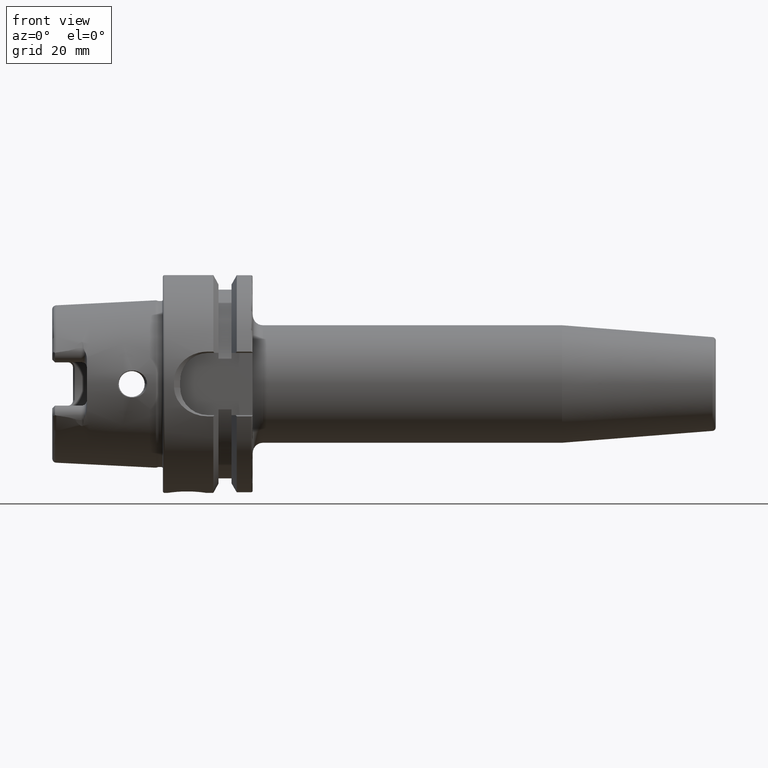
[diagram: clean part render]
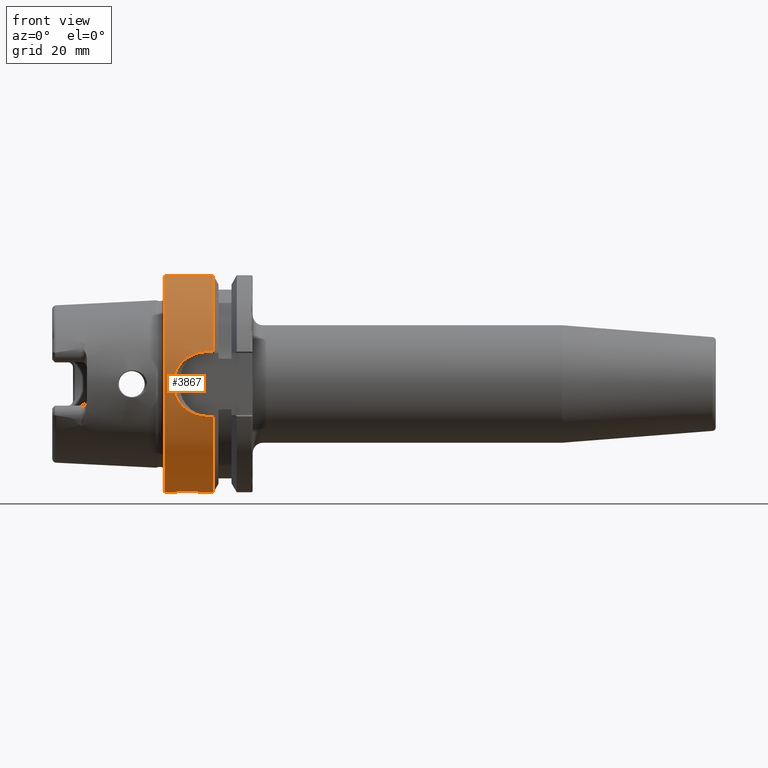
[diagram: same view with one face highlighted and labeled with its STEP entity id]
A machine part, front view. The second image highlights one B-rep face of the part: STEP entity #3867.
In plain terms, the highlighted cylindrical surface (partial cylindrical patch) has radius 31.5 mm, axis along (1, 0, 0).
Its self-contained STEP definition (entity closure, byte-faithful):
#714=CARTESIAN_POINT('',(5.E-1,0.E0,0.E0));
#715=DIRECTION('',(-1.E0,0.E0,0.E0));
#716=DIRECTION('',(0.E0,0.E0,-1.E0));
#717=AXIS2_PLACEMENT_3D('',#714,#715,#716);
#719=DIRECTION('',(-1.E0,-1.152697855394E-12,0.E0));
#720=VECTOR('',#719,1.412250090457E1);
#721=CARTESIAN_POINT('',(1.462250090457E1,0.E0,3.15E1));
#722=LINE('',#721,#720);
#723=CARTESIAN_POINT('',(1.462250090457E1,0.E0,0.E0));
#724=DIRECTION('',(1.E0,0.E0,0.E0));
#725=DIRECTION('',(0.E0,0.E0,1.E0));
#726=AXIS2_PLACEMENT_3D('',#723,#724,#725);
#728=DIRECTION('',(1.E0,0.E0,0.E0));
#729=VECTOR('',#728,1.622500904567E0);
#730=CARTESIAN_POINT('',(1.3E1,-3.007314630073E1,9.373146300730E0));
#731=LINE('',#730,#729);
#732=CARTESIAN_POINT('',(3.215877017138E0,-3.148412298286E1,1.E0));
#733=CARTESIAN_POINT('',(3.229667999164E0,-3.147033200084E1,1.434196974159E0));
#734=CARTESIAN_POINT('',(3.331305148110E0,-3.142562614716E1,2.280557906877E0));
#735=CARTESIAN_POINT('',(3.689639209254E0,-3.131261894329E1,3.497824814117E0));
#736=CARTESIAN_POINT('',(4.224387561762E0,-3.116591969202E1,4.617731549332E0));
#737=CARTESIAN_POINT('',(4.908842568303E0,-3.099748287679E1,5.632070943113E0));
#738=CARTESIAN_POINT('',(5.712482050064E0,-3.082045350516E1,6.526140660742E0));
#739=CARTESIAN_POINT('',(6.610248790574E0,-3.064607991101E1,7.296749719208E0));
#740=CARTESIAN_POINT('',(7.571522800308E0,-3.048524436851E1,7.938452155490E0));
#741=CARTESIAN_POINT('',(8.586678709411E0,-3.034375148093E1,8.460694722024E0));
#742=CARTESIAN_POINT('',(9.645764018389E0,-3.022707288446E1,8.866638984176E0));
#743=CARTESIAN_POINT('',(1.074128466146E1,-3.013966717822E1,9.158034230836E0));
#744=CARTESIAN_POINT('',(1.186302386205E1,-3.008546433696E1,9.333758812896E0));
#745=CARTESIAN_POINT('',(1.261911814478E1,-3.007314630073E1,9.373146300730E0));
#746=CARTESIAN_POINT('',(1.3E1,-3.007314630073E1,9.373146300730E0));
#748=CARTESIAN_POINT('',(3.215877017138E0,-3.148412298286E1,1.E0));
#749=CARTESIAN_POINT('',(3.194702323244E0,-3.150529767676E1,3.333333333333E-1));
#750=CARTESIAN_POINT('',(3.194702323244E0,-3.150529767676E1,
-3.333333333333E-1));
#751=CARTESIAN_POINT('',(3.215877017138E0,-3.148412298286E1,-1.E0));
#753=CARTESIAN_POINT('',(1.3E1,-3.007314630073E1,-9.373146300730E0));
#754=CARTESIAN_POINT('',(1.261853332120E1,-3.007314630073E1,-9.373146300730E0));
#755=CARTESIAN_POINT('',(1.186054965003E1,-3.008548964654E1,-9.333679878844E0));
#756=CARTESIAN_POINT('',(1.073214946153E1,-3.014018055062E1,-9.156365746563E0));
#757=CARTESIAN_POINT('',(9.631145388051E0,-3.022842683235E1,-8.862067281056E0));
#758=CARTESIAN_POINT('',(8.571278418516E0,-3.034570143073E1,-8.453719776647E0));
#759=CARTESIAN_POINT('',(7.561968874510E0,-3.048678333923E1,-7.932465852427E0));
#760=CARTESIAN_POINT('',(6.609353099417E0,-3.064632014939E1,-7.295523702098E0));
#761=CARTESIAN_POINT('',(5.719379577085E0,-3.081907849533E1,-6.532291860359E0));
#762=CARTESIAN_POINT('',(4.918592559215E0,-3.099521802093E1,-5.644324145033E0));
#763=CARTESIAN_POINT('',(4.231158808814E0,-3.116413549913E1,-4.629983120332E0));
#764=CARTESIAN_POINT('',(3.691949597490E0,-3.131190693228E1,-3.504990575318E0));
#765=CARTESIAN_POINT('',(3.331145804748E0,-3.142565099898E1,-2.281032014602E0));
#766=CARTESIAN_POINT('',(3.229661047521E0,-3.147033895248E1,-1.433978107804E0));
#767=CARTESIAN_POINT('',(3.215877017138E0,-3.148412298286E1,-1.E0));
#769=DIRECTION('',(1.E0,0.E0,0.E0));
#770=VECTOR('',#769,1.622500904567E0);
#771=CARTESIAN_POINT('',(1.3E1,-3.007314630073E1,-9.373146300730E0));
#772=LINE('',#771,#770);
#773=CARTESIAN_POINT('',(1.462250090457E1,0.E0,0.E0));
#774=DIRECTION('',(1.E0,0.E0,0.E0));
#775=DIRECTION('',(0.E0,-9.547030571660E-1,-2.975602000232E-1));
#776=AXIS2_PLACEMENT_3D('',#773,#774,#775);
#778=DIRECTION('',(-1.E0,0.E0,0.E0));
#779=VECTOR('',#778,2.122500904567E0);
#780=CARTESIAN_POINT('',(1.462250090457E1,0.E0,-3.15E1));
#781=LINE('',#780,#779);
#782=CARTESIAN_POINT('',(1.5E0,0.E0,-3.15E1));
#783=CARTESIAN_POINT('',(1.5E0,-3.588951255127E-1,-3.15E1));
#784=CARTESIAN_POINT('',(1.581138327990E0,-1.048548521747E0,-3.148782376809E1));
#785=CARTESIAN_POINT('',(1.910588073966E0,-2.006564336888E0,-3.144040908891E1));
#786=CARTESIAN_POINT('',(2.415944971875E0,-2.861556117510E0,-3.137324069068E1));
#787=CARTESIAN_POINT('',(3.093296979582E0,-3.621570072850E0,-3.129379480836E1));
#788=CARTESIAN_POINT('',(3.932860337858E0,-4.259632130927E0,-3.121237817627E1));
#789=CARTESIAN_POINT('',(4.908163968859E0,-4.738763837594E0,-3.114229734464E1));
#790=CARTESIAN_POINT('',(5.940629906439E0,-5.023428099724E0,-3.109702626598E1));
#791=CARTESIAN_POINT('',(7.003177692584E0,-5.118459986461E0,-3.108133735981E1));
#792=CARTESIAN_POINT('',(8.065102610065E0,-5.022310651440E0,-3.109720856453E1));
#793=CARTESIAN_POINT('',(9.095890701222E0,-4.737167472201E0,-3.114254165967E1));
#794=CARTESIAN_POINT('',(1.007119715688E1,-4.257247395534E0,-3.121271241342E1));
#795=CARTESIAN_POINT('',(1.091189752168E1,-3.616987749219E0,-3.129434443001E1));
#796=CARTESIAN_POINT('',(1.158923361556E1,-2.854578399489E0,-3.137389265772E1));
#797=CARTESIAN_POINT('',(1.209279314293E1,-1.998956427454E0,-3.144088492167E1));
#798=CARTESIAN_POINT('',(1.241973333056E1,-1.043420158419E0,-3.148795551285E1));
#799=CARTESIAN_POINT('',(1.25E1,-3.569041729368E-1,-3.15E1));
#800=CARTESIAN_POINT('',(1.25E1,0.E0,-3.15E1));
#802=DIRECTION('',(-1.E0,-3.500326402276E-12,0.E0));
#803=VECTOR('',#802,1.E0);
#804=CARTESIAN_POINT('',(1.5E0,0.E0,-3.15E1));
#805=LINE('',#804,#803);
#824=CARTESIAN_POINT('',(1.25E1,0.E0,-3.15E1));
#842=CARTESIAN_POINT('',(1.5E0,0.E0,-3.15E1));
#2681=CARTESIAN_POINT('',(1.462250090457E1,0.E0,3.15E1));
#2682=VERTEX_POINT('',#2681);
#2824=VERTEX_POINT('',#824);
#2825=VERTEX_POINT('',#842);
#2834=CARTESIAN_POINT('',(1.462250090457E1,0.E0,-3.15E1));
#2835=VERTEX_POINT('',#2834);
#2858=CARTESIAN_POINT('',(1.3E1,-3.007314630073E1,-9.373146300730E0));
#2859=CARTESIAN_POINT('',(1.462250090457E1,-3.007314630073E1,
-9.373146300730E0));
#2860=VERTEX_POINT('',#2858);
#2861=VERTEX_POINT('',#2859);
#2862=VERTEX_POINT('',#767);
#2863=VERTEX_POINT('',#748);
#2864=VERTEX_POINT('',#746);
#2865=CARTESIAN_POINT('',(1.462250090457E1,-3.007314630073E1,9.373146300730E0));
#2866=VERTEX_POINT('',#2865);
#2906=CARTESIAN_POINT('',(5.E-1,0.E0,3.15E1));
#2907=CARTESIAN_POINT('',(5.E-1,0.E0,-3.15E1));
#2908=VERTEX_POINT('',#2906);
#2909=VERTEX_POINT('',#2907);
#3836=CARTESIAN_POINT('',(0.E0,0.E0,0.E0));
#3837=DIRECTION('',(1.E0,0.E0,0.E0));
#3838=DIRECTION('',(0.E0,0.E0,1.E0));
#3839=AXIS2_PLACEMENT_3D('',#3836,#3837,#3838);
#3840=CYLINDRICAL_SURFACE('',#3839,3.15E1);
#3842=ORIENTED_EDGE('',*,*,#3841,.T.);
#3844=ORIENTED_EDGE('',*,*,#3843,.F.);
#3846=ORIENTED_EDGE('',*,*,#3845,.T.);
#3848=ORIENTED_EDGE('',*,*,#3847,.F.);
#3850=ORIENTED_EDGE('',*,*,#3849,.F.);
#3852=ORIENTED_EDGE('',*,*,#3851,.T.);
#3854=ORIENTED_EDGE('',*,*,#3853,.F.);
#3856=ORIENTED_EDGE('',*,*,#3855,.T.);
#3858=ORIENTED_EDGE('',*,*,#3857,.T.);
#3860=ORIENTED_EDGE('',*,*,#3859,.T.);
#3862=ORIENTED_EDGE('',*,*,#3861,.F.);
#3864=ORIENTED_EDGE('',*,*,#3863,.T.);
#3865=EDGE_LOOP('',(#3842,#3844,#3846,#3848,#3850,#3852,#3854,#3856,#3858,#3860,
#3862,#3864));
#3866=FACE_OUTER_BOUND('',#3865,.F.);
#3867=ADVANCED_FACE('',(#3866),#3840,.T.);
#718=CIRCLE('',#717,3.15E1);
#727=CIRCLE('',#726,3.15E1);
#747=B_SPLINE_CURVE_WITH_KNOTS('',3,(#732,#733,#734,#735,#736,#737,#738,#739,
#740,#741,#742,#743,#744,#745,#746),.UNSPECIFIED.,.F.,.F.,(4,1,1,1,1,1,1,1,1,1,
1,1,4),(0.E0,8.333333333333E-2,1.666666666667E-1,2.5E-1,3.333333333333E-1,
4.166666666667E-1,5.E-1,5.833333333333E-1,6.666666666667E-1,7.5E-1,
8.333333333333E-1,9.166666666667E-1,1.E0),.UNSPECIFIED.);
#752=B_SPLINE_CURVE_WITH_KNOTS('',3,(#748,#749,#750,#751),.UNSPECIFIED.,.F.,.F.,
(4,4),(0.E0,1.E0),.UNSPECIFIED.);
#768=B_SPLINE_CURVE_WITH_KNOTS('',3,(#753,#754,#755,#756,#757,#758,#759,#760,
#761,#762,#763,#764,#765,#766,#767),.UNSPECIFIED.,.F.,.F.,(4,1,1,1,1,1,1,1,1,1,
1,1,4),(0.E0,8.333333333333E-2,1.666666666667E-1,2.5E-1,3.333333333333E-1,
4.166666666667E-1,5.E-1,5.833333333333E-1,6.666666666667E-1,7.5E-1,
8.333333333333E-1,9.166666666667E-1,1.E0),.UNSPECIFIED.);
#777=CIRCLE('',#776,3.15E1);
#801=B_SPLINE_CURVE_WITH_KNOTS('',3,(#782,#783,#784,#785,#786,#787,#788,#789,
#790,#791,#792,#793,#794,#795,#796,#797,#798,#799,#800),.UNSPECIFIED.,.F.,.F.,
(4,1,1,1,1,1,1,1,1,1,1,1,1,1,1,1,4),(0.E0,6.25E-2,1.25E-1,1.875E-1,2.5E-1,
3.125E-1,3.75E-1,4.375E-1,5.E-1,5.625E-1,6.25E-1,6.875E-1,7.5E-1,8.125E-1,
8.75E-1,9.375E-1,1.E0),.UNSPECIFIED.);
#3841=EDGE_CURVE('',#2909,#2908,#718,.T.);
#3843=EDGE_CURVE('',#2682,#2908,#722,.T.);
#3845=EDGE_CURVE('',#2682,#2866,#727,.T.);
#3847=EDGE_CURVE('',#2864,#2866,#731,.T.);
#3849=EDGE_CURVE('',#2863,#2864,#747,.T.);
#3851=EDGE_CURVE('',#2863,#2862,#752,.T.);
#3853=EDGE_CURVE('',#2860,#2862,#768,.T.);
#3855=EDGE_CURVE('',#2860,#2861,#772,.T.);
#3857=EDGE_CURVE('',#2861,#2835,#777,.T.);
#3859=EDGE_CURVE('',#2835,#2824,#781,.T.);
#3861=EDGE_CURVE('',#2825,#2824,#801,.T.);
#3863=EDGE_CURVE('',#2825,#2909,#805,.T.);